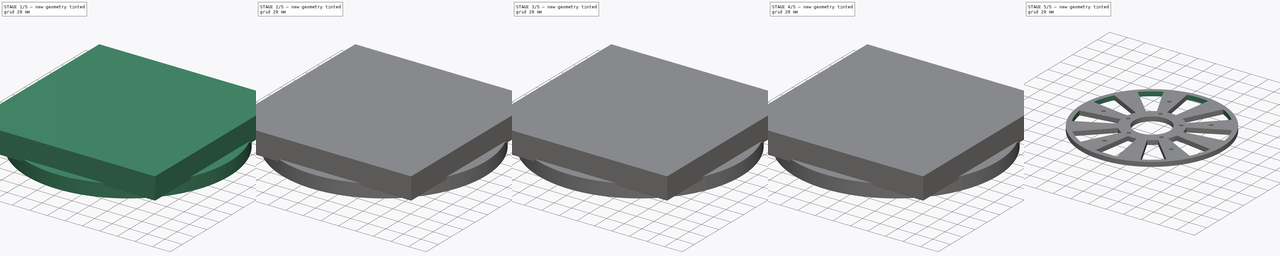
[diagram: build sequence overview — one tinted view per stage of 5, left to right]
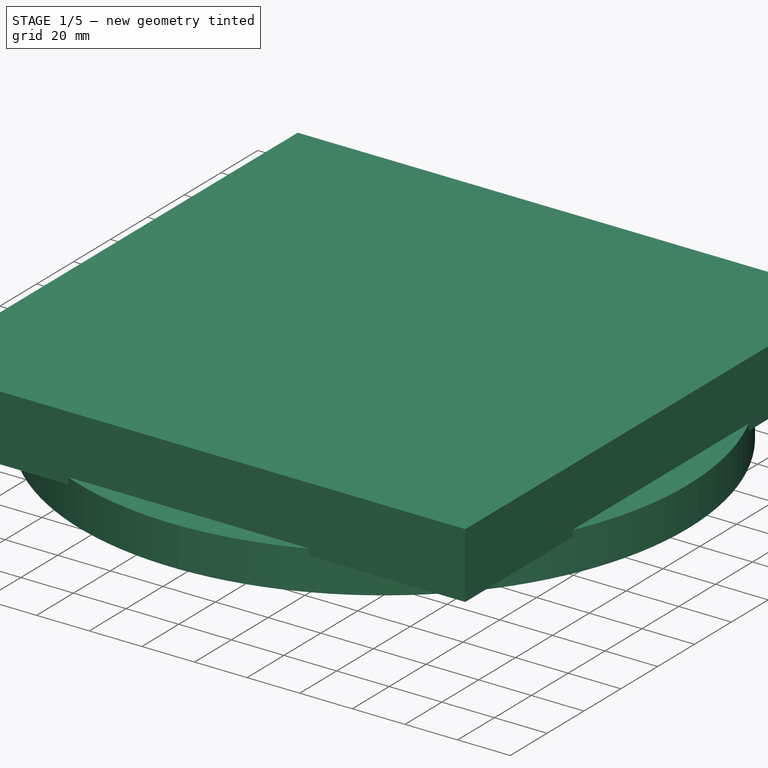
[diagram: stage 1 of 5 — iso view after this stage's code; geometry added in this stage tinted green]
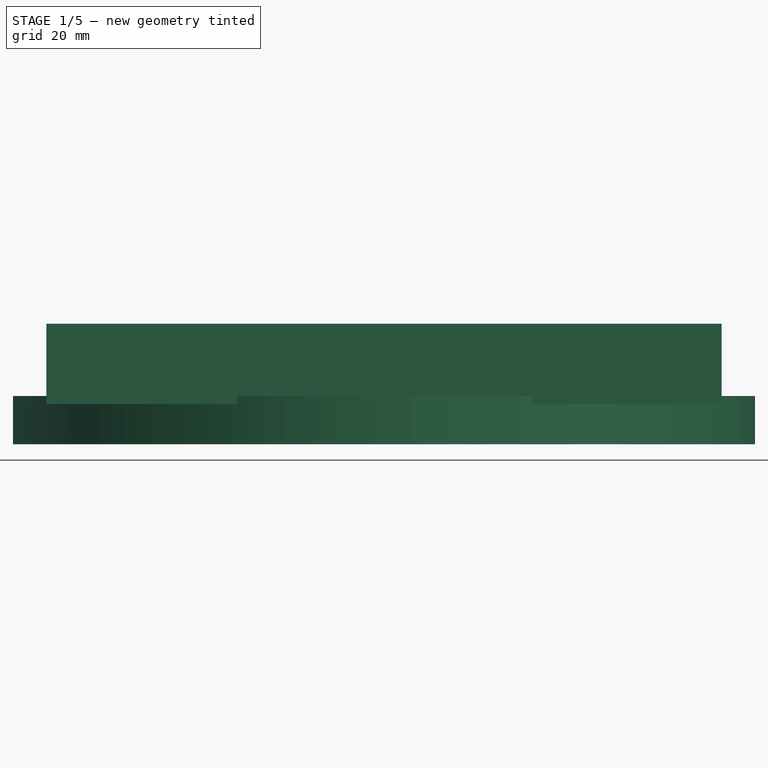
[diagram: stage 1 of 5 — front view after this stage's code; geometry added in this stage tinted green]
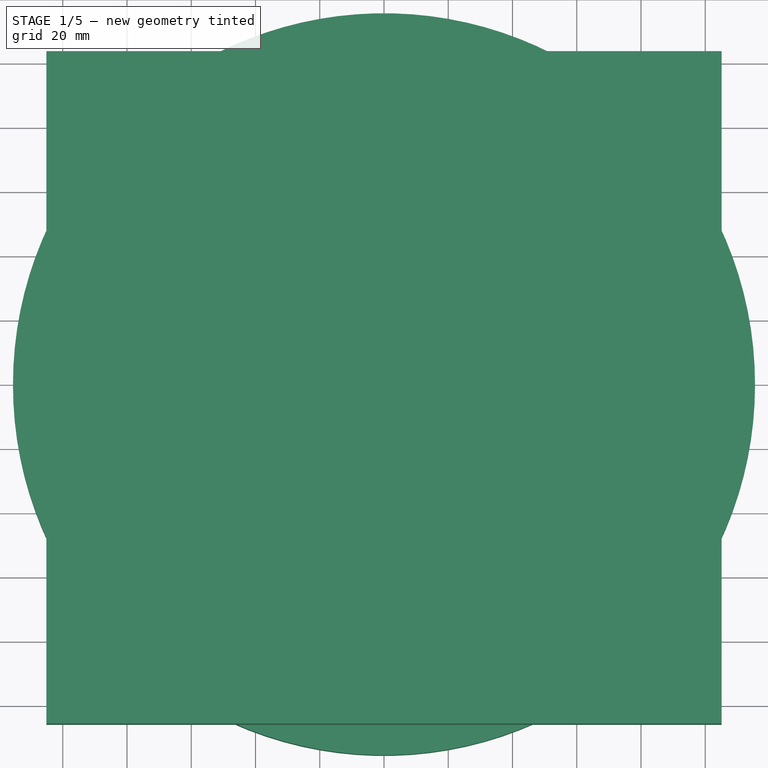
[diagram: stage 1 of 5 — top view after this stage's code; geometry added in this stage tinted green]
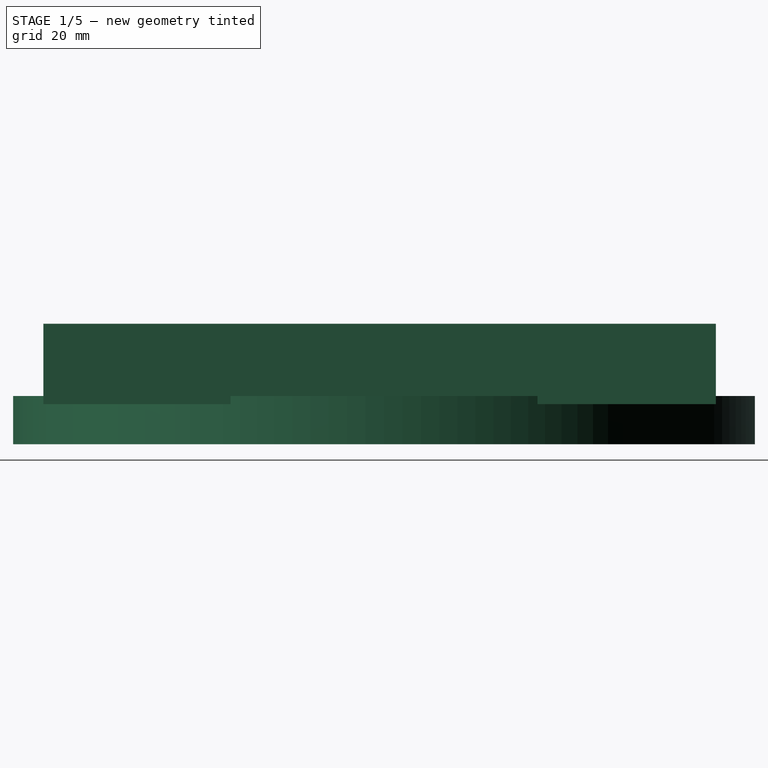
[diagram: stage 1 of 5 — right view after this stage's code; geometry added in this stage tinted green]
FCSTD DOCUMENT  (FreeCAD 0.16R6703 (Git))
Label: Loose Spool Holder Tap
License: FreeArt
LicenseURL: http://artlibre.org/licence/lal
objects: Sketcher::SketchObject×14, PartDesign::Pad×9, PartDesign::Pocket×5, PartDesign::PolarPattern×5, Part::Cut×2, Part::Fuse×1
note: 50 computed .brp shape members not serialized (recipe doc carries the construction recipe); baked Part::Feature solids carry a one-line shape summary decoded from their .brp

FEATURE [Sketcher::SketchObject] Sketch004
  Placement = pos=(0,0,5) rot=(0,0,1;0rad)
  sketch-geometry (2):
    g0: Circle CenterX=0 CenterY=0 CenterZ=0 NormalX=0 NormalY=0 NormalZ=1 Radius=50
    g1: Circle CenterX=0 CenterY=0 CenterZ=0 NormalX=0 NormalY=0 NormalZ=1 Radius=60
  constraints (4):
    c: Coincident(g0,g-1)
    c: Coincident(g1,g-1)
    c: Radius(g0) = 50
    c: Radius(g1) = 60
FEATURE [PartDesign::Pad] Pad002
  Length = 20
  Length2 = 100
  Placement = pos=(0,0,5) rot=(0,0,1;0rad)
  Sketch = -> Sketch004
  Type = 0
FEATURE [Sketcher::SketchObject] Sketch005
  Placement = pos=(0,0,25) rot=(0,0,1;0rad)
  Support = -> Pad002 [Face4]
  sketch-geometry (4):
    g0: LineSegment StartX=-10.8334 StartY=67.0684 StartZ=0 EndX=-7.53839 EndY=47.1201 EndZ=0
    g1: LineSegment StartX=-7.53839 StartY=47.1201 StartZ=0 EndX=7.58167 EndY=47.1201 EndZ=0
    g2: LineSegment StartX=7.58167 StartY=47.1201 StartZ=0 EndX=10.72 EndY=66.0553 EndZ=0
    g3: LineSegment StartX=10.72 StartY=66.0553 StartZ=0 EndX=-10.8334 EndY=67.0684 EndZ=0
  constraints (5):
    c: Coincident(g0,g1)
    c: Horizontal(g1)
    c: Coincident(g1,g2)
    c: Coincident(g2,g3)
    c: Coincident(g3,g0)
FEATURE [PartDesign::Pocket] Pocket001
  Length = 20
  Placement = pos=(0,0,5) rot=(0,0,1;0rad)
  Sketch = -> Sketch005
  Type = 0
FEATURE [Sketcher::SketchObject] Sketch012
  Placement = pos=(0,0,5) rot=(0,0,1;0rad)
  sketch-geometry (4):
    g0: LineSegment StartX=-105.116 StartY=103.312 StartZ=0 EndX=105.116 EndY=103.312 EndZ=0
    g1: LineSegment StartX=105.116 StartY=103.312 StartZ=0 EndX=105.116 EndY=-106.019 EndZ=0
    g2: LineSegment StartX=105.116 StartY=-106.019 StartZ=0 EndX=-105.116 EndY=-106.019 EndZ=0
    g3: LineSegment StartX=-105.116 StartY=-106.019 StartZ=0 EndX=-105.116 EndY=103.312 EndZ=0
  constraints (8):
    c: Coincident(g0,g1)
    c: Coincident(g1,g2)
    c: Coincident(g2,g3)
    c: Coincident(g3,g0)
    c: Horizontal(g0)
    c: Horizontal(g2)
    c: Vertical(g1)
    c: Vertical(g3)
FEATURE [PartDesign::Pad] Pad006
  Length = 25
  Length2 = 100
  Placement = pos=(0,0,5) rot=(0,0,1;0rad)
  Sketch = -> Sketch012
  Type = 0
FEATURE [Sketcher::SketchObject] Sketch013
  sketch-geometry (2):
    g0: Circle CenterX=0 CenterY=0 CenterZ=0 NormalX=0 NormalY=0 NormalZ=1 Radius=80
    g1: Circle CenterX=0 CenterY=0 CenterZ=0 NormalX=0 NormalY=0 NormalZ=1 Radius=115.5
  constraints (3):
    c: Coincident(g0,g-1)
    c: Coincident(g1,g-1)
    c: Radius(g0) = 80
FEATURE [PartDesign::Pad] Pad007
  Length = 15
  Length2 = 100
  Midplane = true
  Sketch = -> Sketch013
  Type = 0
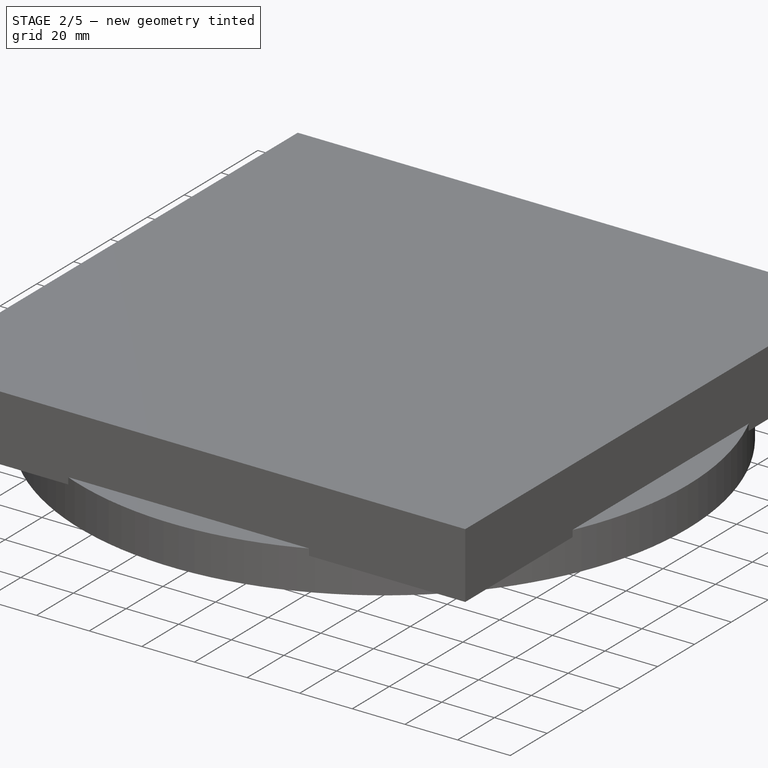
[diagram: stage 2 of 5 — iso view after this stage's code; geometry added in this stage tinted green]
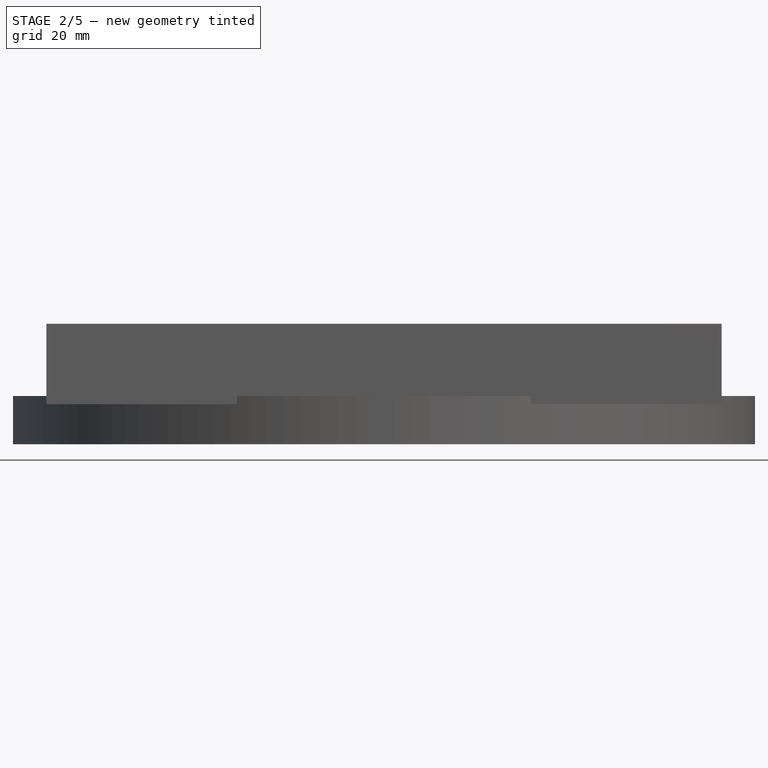
[diagram: stage 2 of 5 — front view after this stage's code; geometry added in this stage tinted green]
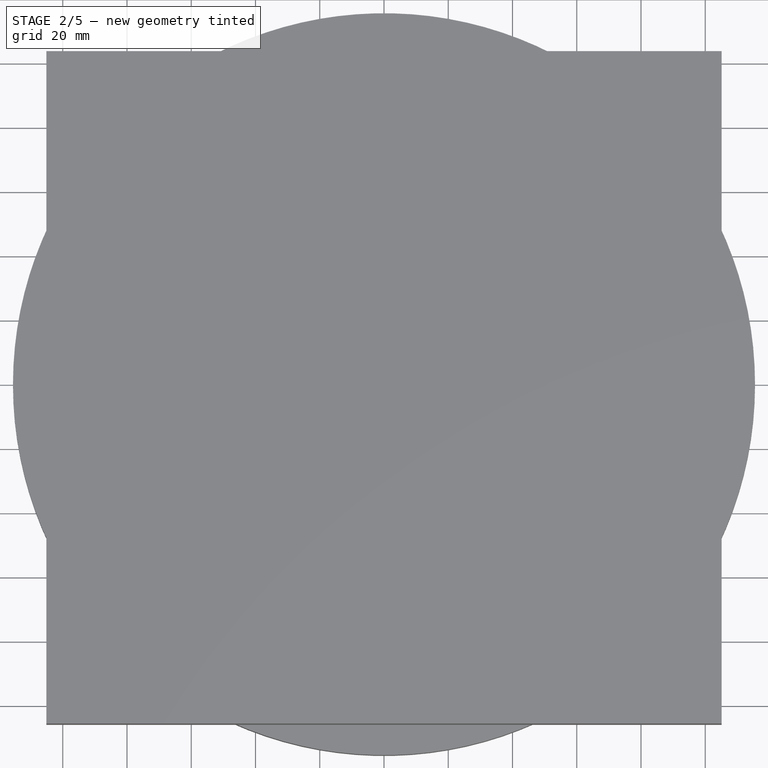
[diagram: stage 2 of 5 — top view after this stage's code; geometry added in this stage tinted green]
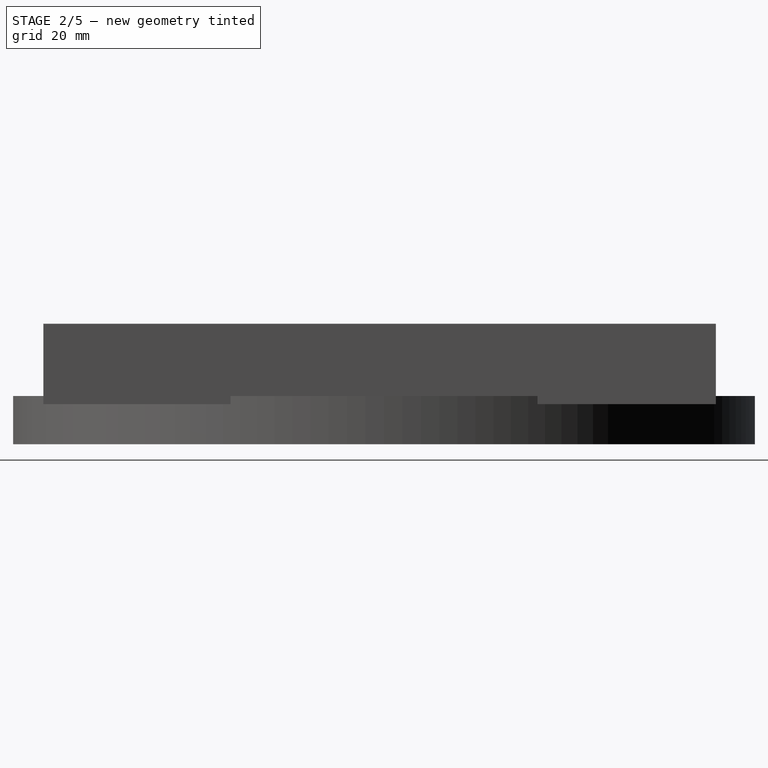
[diagram: stage 2 of 5 — right view after this stage's code; geometry added in this stage tinted green]
FEATURE [Sketcher::SketchObject] Sketch
  sketch-geometry (2):
    g0: Circle CenterX=0 CenterY=0 CenterZ=0 NormalX=0 NormalY=0 NormalZ=1 Radius=20
    g1: Circle CenterX=0 CenterY=0 CenterZ=0 NormalX=0 NormalY=0 NormalZ=1 Radius=100
  constraints (2):
    c: Radius(g0) = 20
    c: Radius(g1) = 100
FEATURE [PartDesign::Pad] Pad
  Length = 5
  Length2 = 100
  Sketch = -> Sketch
  Type = 0
FEATURE [Sketcher::SketchObject] Sketch001
  Placement = pos=(0,0,5) rot=(0,0,1;0rad)
  Support = -> Pad [Face4]
  sketch-geometry (6):
    g0: Circle [constr] CenterX=0 CenterY=0 CenterZ=0 NormalX=0 NormalY=0 NormalZ=1 Radius=40
    g1: Circle [constr] CenterX=0 CenterY=0 CenterZ=0 NormalX=0 NormalY=0 NormalZ=1 Radius=60
    g2: LineSegment StartX=-15 StartY=92.6006 StartZ=0 EndX=15 EndY=92.6006 EndZ=0
    g3: LineSegment StartX=15 StartY=92.6006 StartZ=0 EndX=5 EndY=30.949 EndZ=0
    g4: LineSegment StartX=5 StartY=30.949 StartZ=0 EndX=-5 EndY=30.949 EndZ=0
    g5: LineSegment StartX=-5 StartY=30.949 StartZ=0 EndX=-15 EndY=92.6006 EndZ=0
  constraints (14):
    c: Radius(g0) = 40
    c: Radius(g1) = 60
    c: Coincident(g0,g-1)
    c: Coincident(g1,g-1)
    c: Horizontal(g2)
    c: Coincident(g2,g3)
    c: Coincident(g3,g4)
    c: Horizontal(g4)
    c: Coincident(g4,g5)
    c: Coincident(g5,g2)
    c: Symmetric(g2,g2,g-2)
    c: Symmetric(g3,g4,g-2)
    c: DistanceX(g4,g4) = 10
    c: DistanceX(g2,g2) = 30
FEATURE [PartDesign::Pocket] Pocket
  Length = 5
  Sketch = -> Sketch001
  Type = 1
FEATURE [PartDesign::PolarPattern] PolarPattern
  Angle = 360
  Axis = -> Sketch001 [N_Axis]
  Occurrences = 10
  Originals = -> [Pocket]
FEATURE [Sketcher::SketchObject] Sketch002
  Placement = pos=(0,0,5) rot=(0,0,1;0rad)
  Support = -> PolarPattern [Face3]
  sketch-geometry (2):
    g0: Circle CenterX=0 CenterY=0 CenterZ=0 NormalX=0 NormalY=0 NormalZ=1 Radius=100
    g1: Circle CenterX=0 CenterY=0 CenterZ=0 NormalX=0 NormalY=0 NormalZ=1 Radius=91.9421
  constraints (1):
    c: Radius(g0) = 100
FEATURE [PartDesign::Pad] Pad001
  Length = 2
  Length2 = 5
  Reversed = true
  Sketch = -> Sketch002
  Type = 4
FEATURE [PartDesign::PolarPattern] PolarPattern001
  Angle = 360
  Axis = -> Sketch005 [N_Axis]
  Occurrences = 10
  Originals = -> [Pocket001]
  Placement = pos=(0,0,5) rot=(0,0,1;0rad)
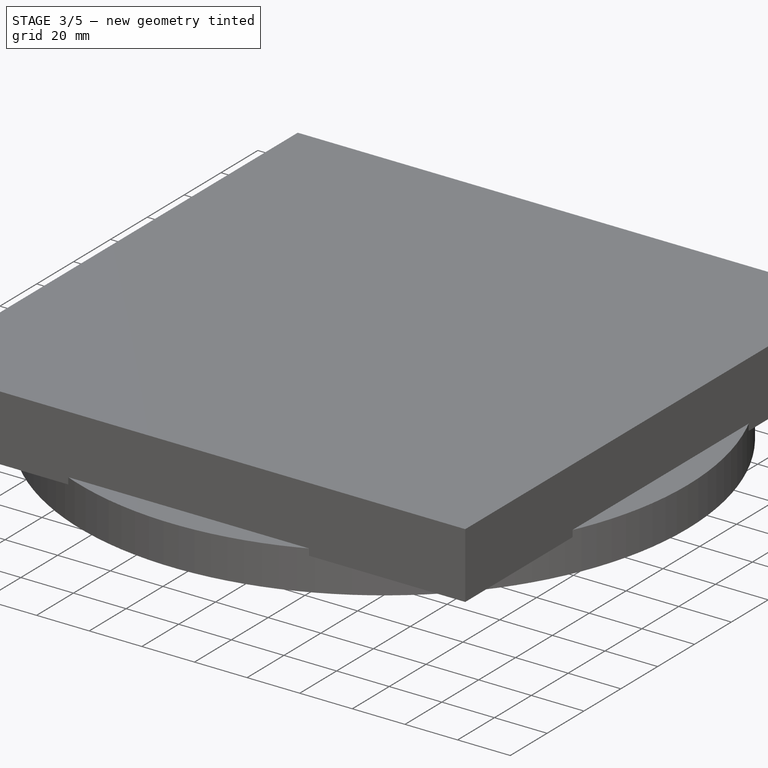
[diagram: stage 3 of 5 — iso view after this stage's code; geometry added in this stage tinted green]
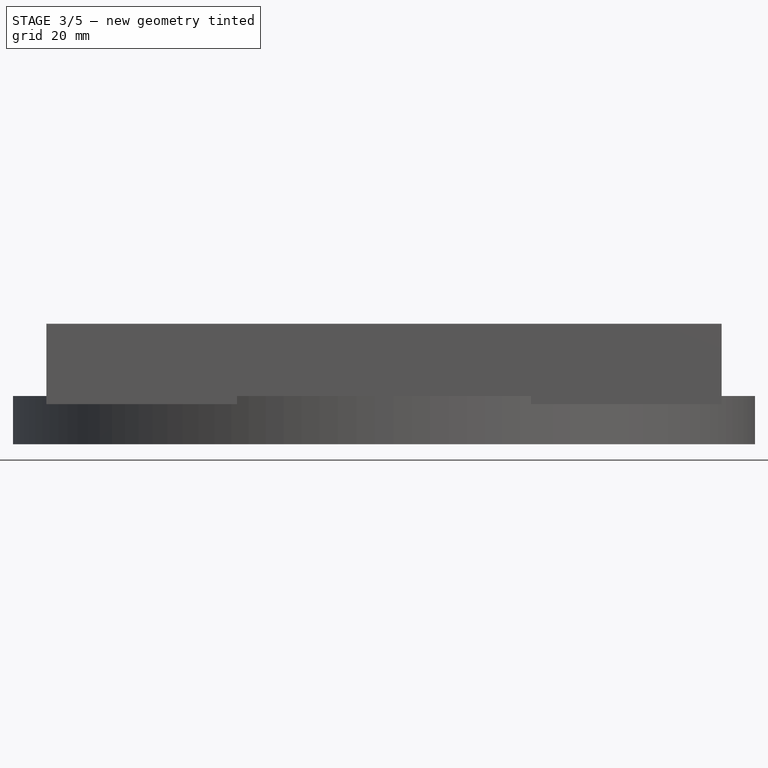
[diagram: stage 3 of 5 — front view after this stage's code; geometry added in this stage tinted green]
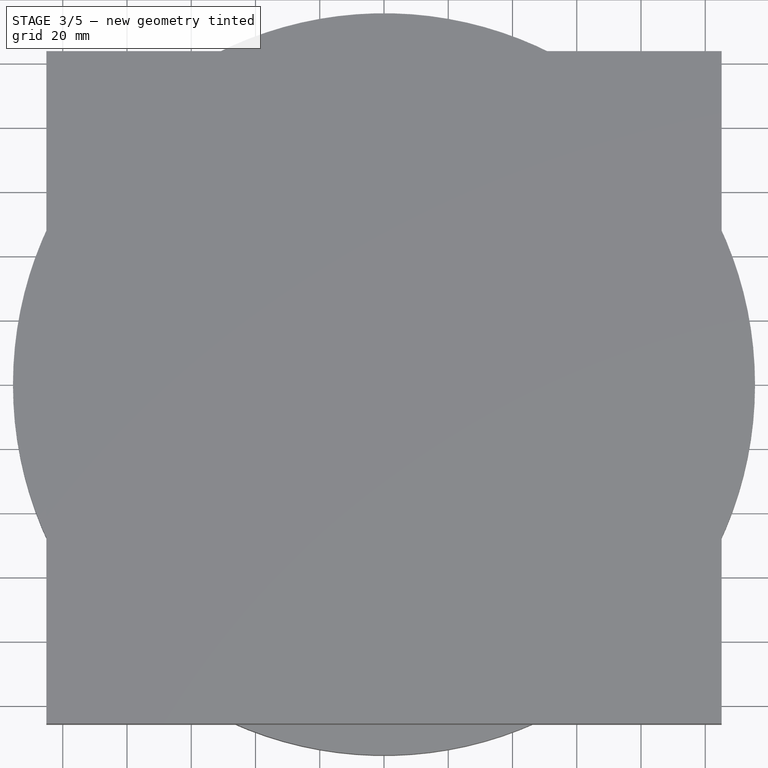
[diagram: stage 3 of 5 — top view after this stage's code; geometry added in this stage tinted green]
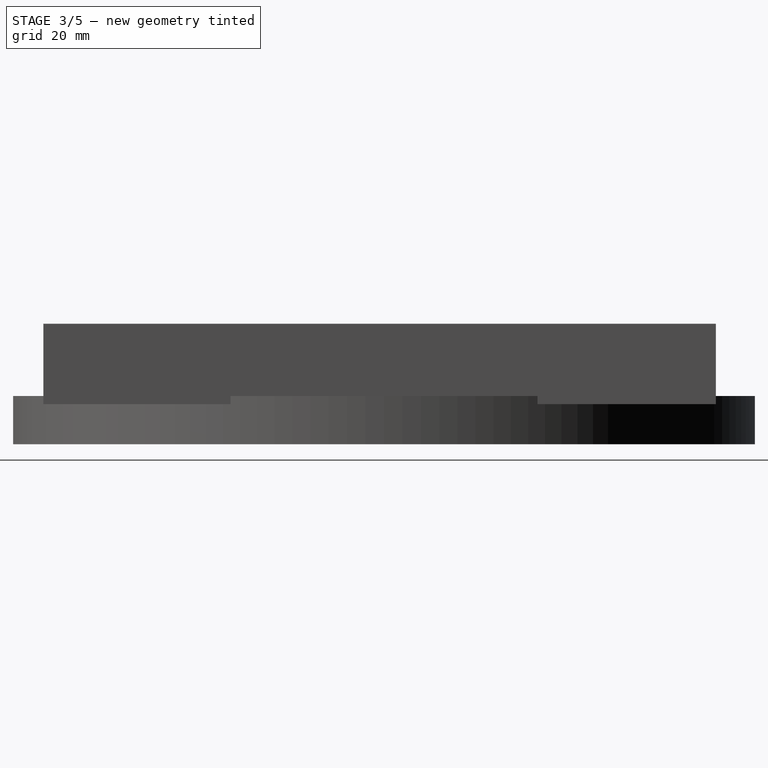
[diagram: stage 3 of 5 — right view after this stage's code; geometry added in this stage tinted green]
FEATURE [Sketcher::SketchObject] Sketch006
  Placement = pos=(0,0,5) rot=(0,0,1;0rad)
  Support = -> Pad001 [Face2]
  sketch-geometry (2):
    g0: Circle CenterX=0 CenterY=0 CenterZ=0 NormalX=0 NormalY=0 NormalZ=1 Radius=20
    g1: Circle CenterX=0 CenterY=0 CenterZ=0 NormalX=0 NormalY=0 NormalZ=1 Radius=32
  constraints (3):
    c: Coincident(g0,g-1)
    c: Radius(g0) = 20
    c: Radius(g1) = 32
FEATURE [PartDesign::Pad] Pad003
  Length = 5
  Length2 = 100
  Reversed = true
  Sketch = -> Sketch006
  Type = 0
FEATURE [Sketcher::SketchObject] Sketch007
  Placement = pos=(0,0,5) rot=(0,0,1;0rad)
  Support = -> Pad003 [Face2]
  sketch-geometry (2):
    g0: Circle CenterX=0 CenterY=0 CenterZ=0 NormalX=0 NormalY=0 NormalZ=1 Radius=20
    g1: Circle CenterX=0 CenterY=0 CenterZ=0 NormalX=0 NormalY=0 NormalZ=1 Radius=25
  constraints (4):
    c: Coincident(g0,g-1)
    c: Coincident(g1,g-1)
    c: Radius(g0) = 20
    c: Radius(g1) = 25
FEATURE [PartDesign::Pad] Pad004
  Length = 20
  Length2 = 100
  Sketch = -> Sketch007
  Type = 0
FEATURE [Sketcher::SketchObject] Sketch008
  Placement = pos=(0,0,5) rot=(0,0,1;0rad)
  Support = -> Pad004 [Face2]
  sketch-geometry (4):
    g0: LineSegment StartX=-31.5406 StartY=4.94484 StartZ=0 EndX=-31.5406 EndY=-4.94484 EndZ=0
    g1: LineSegment StartX=-31.5406 StartY=-4.94484 StartZ=0 EndX=-23.5707 EndY=-4.02765 EndZ=0
    g2: LineSegment StartX=-23.5707 StartY=-4.02765 StartZ=0 EndX=-23.5707 EndY=4.02765 EndZ=0
    g3: LineSegment StartX=-23.5707 StartY=4.02765 StartZ=0 EndX=-31.5406 EndY=4.94484 EndZ=0
  constraints (8):
    c: Vertical(g0)
    c: Coincident(g0,g1)
    c: Coincident(g1,g2)
    c: Vertical(g2)
    c: Coincident(g2,g3)
    c: Coincident(g3,g0)
    c: Symmetric(g0,g0,g-1)
    c: Symmetric(g2,g1,g-1)
FEATURE [PartDesign::Pad] Pad005
  Length = 20
  Length2 = 100
  Sketch = -> Sketch008
  Type = 0
FEATURE [PartDesign::PolarPattern] PolarPattern002
  Angle = 360
  Axis = -> Sketch008 [N_Axis]
  Occurrences = 5
  Originals = -> [Pad005]
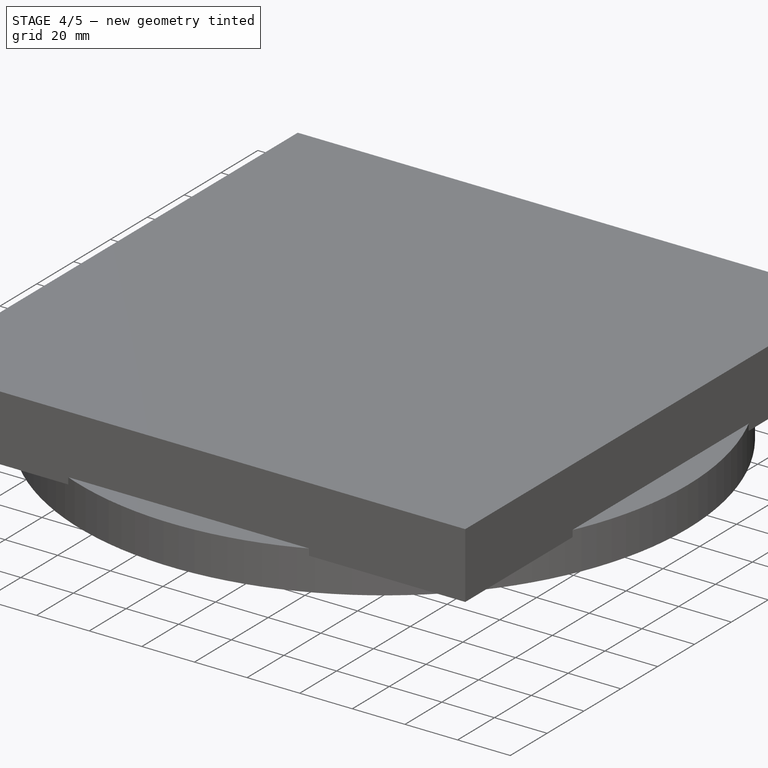
[diagram: stage 4 of 5 — iso view after this stage's code; geometry added in this stage tinted green]
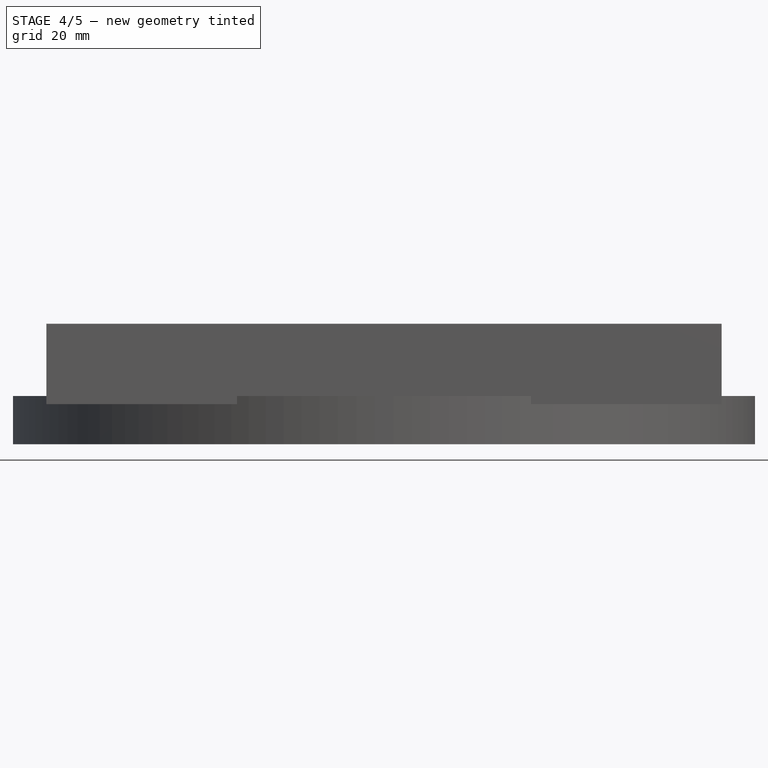
[diagram: stage 4 of 5 — front view after this stage's code; geometry added in this stage tinted green]
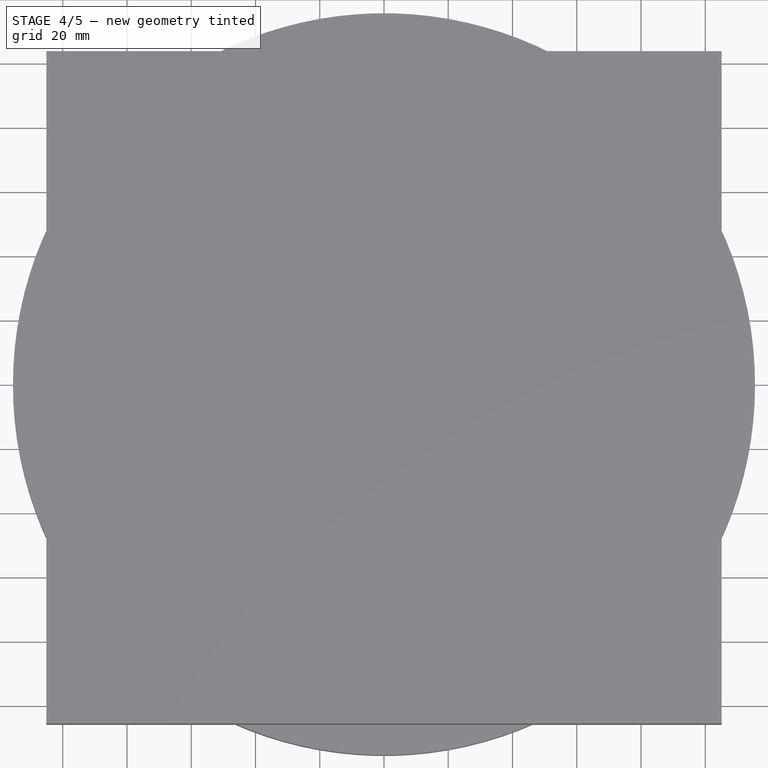
[diagram: stage 4 of 5 — top view after this stage's code; geometry added in this stage tinted green]
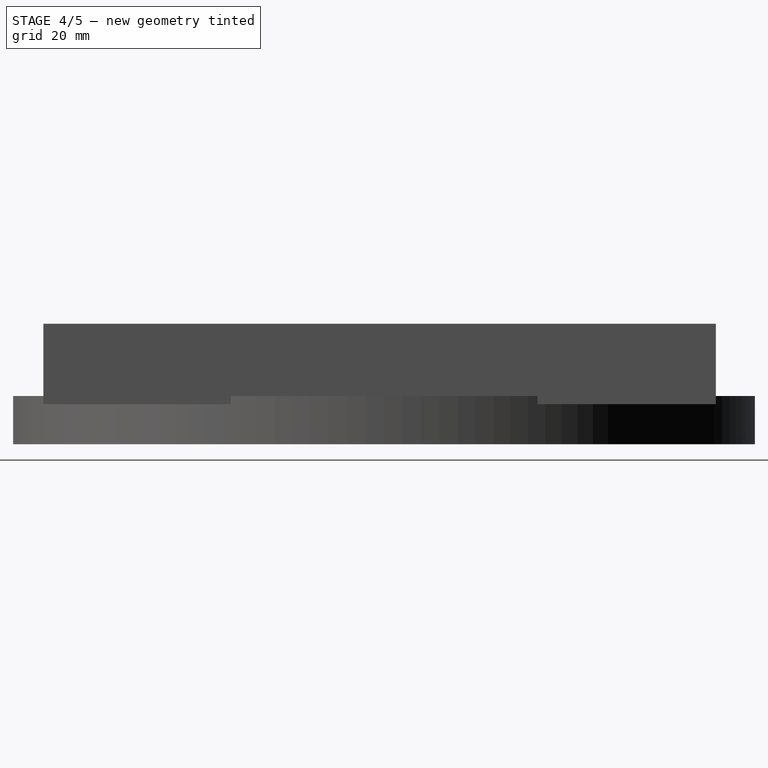
[diagram: stage 4 of 5 — right view after this stage's code; geometry added in this stage tinted green]
FEATURE [Part::Fuse] Fusion
  Base = -> PolarPattern001
  Tool = -> PolarPattern002
FEATURE [Sketcher::SketchObject] Sketch009
  Placement = pos=(0,0,25) rot=(0,0,1;0rad)
  Support = -> Fusion [Face129]
  sketch-geometry (2):
    g0: Circle CenterX=-55 CenterY=0 CenterZ=0 NormalX=0 NormalY=0 NormalZ=1 Radius=2
    g1: Circle CenterX=-27 CenterY=0 CenterZ=0 NormalX=0 NormalY=0 NormalZ=1 Radius=2
  constraints (6):
    c: PointOnObject(g0,g-1)
    c: DistanceX(g0,g-1) = 55
    c: Radius(g0) = 2
    c: PointOnObject(g1,g-1)
    c: Radius(g1) = 2
    c: DistanceX(g1,g-1) = 27
FEATURE [PartDesign::Pocket] Pocket002
  Length = 5
  Sketch = -> Sketch009
  Type = 1
FEATURE [PartDesign::PolarPattern] PolarPattern003
  Angle = 360
  Axis = -> Sketch009 [N_Axis]
  Occurrences = 5
  Originals = -> [Pocket002]
FEATURE [Sketcher::SketchObject] Sketch010
  Placement = pos=(0,0,0) rot=(1,0,0;3.14159rad)
  Support = -> PolarPattern003 [Face4]
  sketch-geometry (2):
    g0: Circle CenterX=-55 CenterY=0 CenterZ=0 NormalX=0 NormalY=0 NormalZ=1 Radius=4
    g1: Circle CenterX=-27 CenterY=0 CenterZ=0 NormalX=0 NormalY=0 NormalZ=1 Radius=4
  constraints (6):
    c: PointOnObject(g0,g-1)
    c: DistanceX(g-2,g0) = -55
    c: Radius(g0) = 4
    c: PointOnObject(g1,g-1)
    c: Distance(g-1,g1) = 27
    c: Radius(g1) = 4
FEATURE [PartDesign::Pocket] Pocket003
  Length = 2
  Sketch = -> Sketch010
  Type = 0
FEATURE [PartDesign::PolarPattern] PolarPattern004
  Angle = 360
  Axis = -> Sketch010 [N_Axis]
  Occurrences = 5
  Originals = -> [Pocket003]
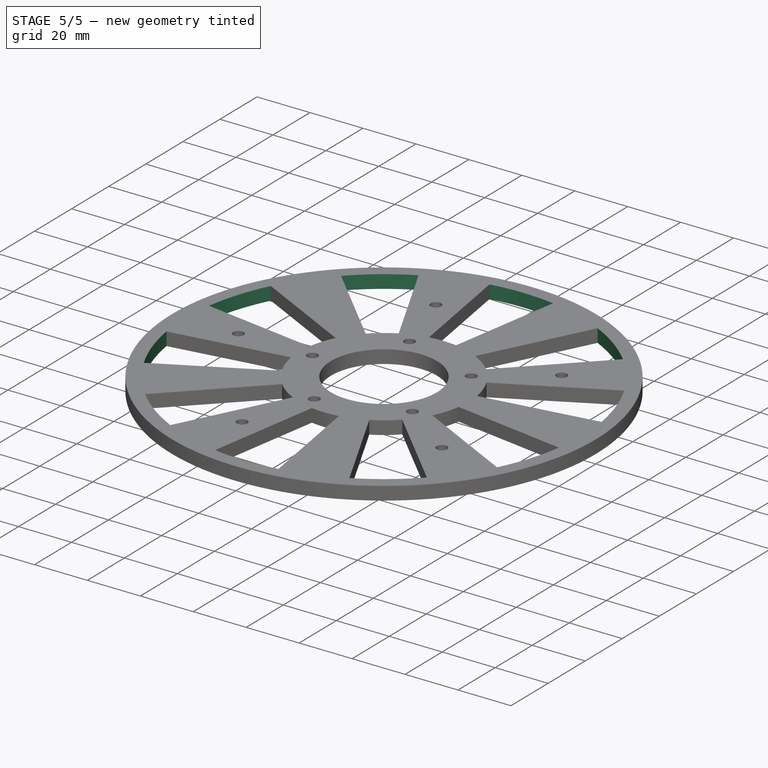
[diagram: stage 5 of 5 — iso view after this stage's code; geometry added in this stage tinted green]
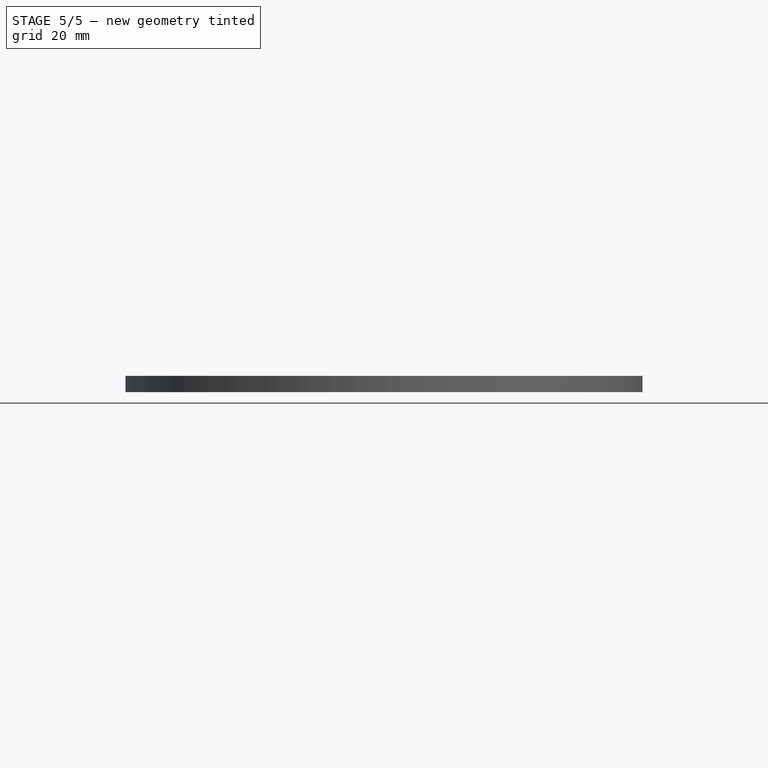
[diagram: stage 5 of 5 — front view after this stage's code; geometry added in this stage tinted green]
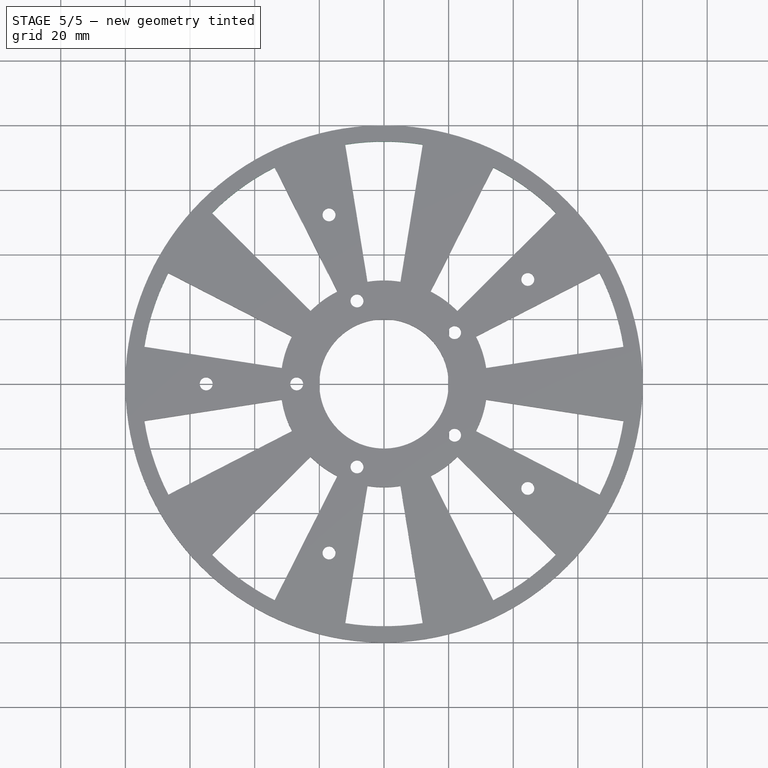
[diagram: stage 5 of 5 — top view after this stage's code; geometry added in this stage tinted green]
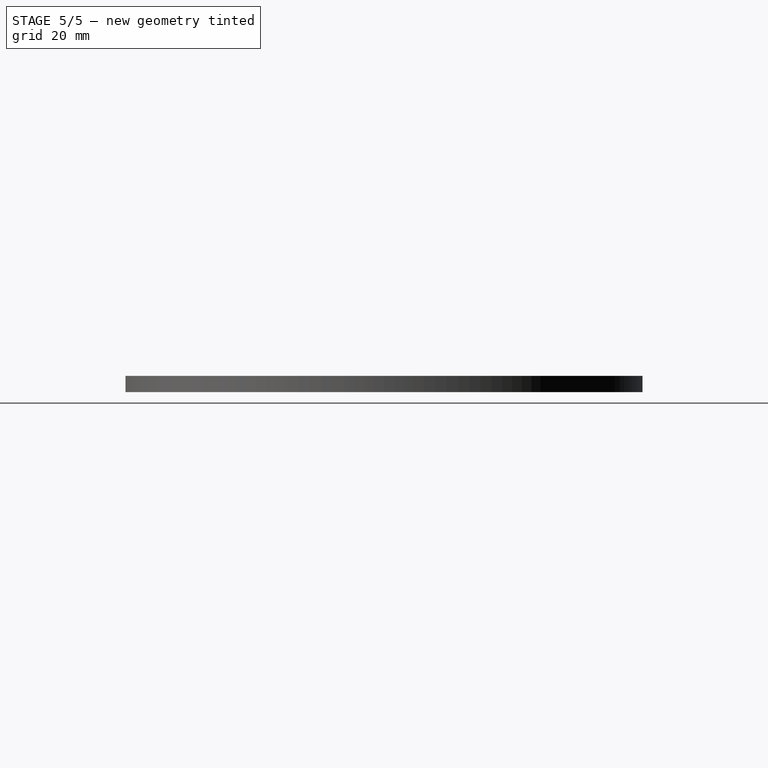
[diagram: stage 5 of 5 — right view after this stage's code; geometry added in this stage tinted green]
FEATURE [Sketcher::SketchObject] Sketch011
  Placement = pos=(1.28052,0.259015,0) rot=(0.50068,0.612095,0.612095;2.21321rad)
  Support = -> PolarPattern004 [Face131]
  sketch-geometry (1):
    g0: Circle CenterX=-56.0075 CenterY=9.826 CenterZ=0 NormalX=0 NormalY=0 NormalZ=1 Radius=0.8
  constraints (1):
    c: Radius(g0) = 0.8
FEATURE [PartDesign::Pocket] Pocket004
  Length = 23
  Sketch = -> Sketch011
  Type = 0
FEATURE [Part::Cut] Cut
  Base = -> Pocket004
  Tool = -> Pad006
FEATURE [Part::Cut] Cut001
  Base = -> Cut
  Tool = -> Pad007
FEATURE [Sketcher::SketchObject] Sketch014
  Placement = pos=(0,0,5) rot=(0,0,1;0rad)
  Support = -> Cut001 [Face1]
  sketch-geometry (2):
    g0: Circle CenterX=0 CenterY=0 CenterZ=0 NormalX=0 NormalY=0 NormalZ=1 Radius=80
    g1: Circle CenterX=0 CenterY=0 CenterZ=0 NormalX=0 NormalY=0 NormalZ=1 Radius=75
  constraints (4):
    c: Coincident(g0,g-1)
    c: Coincident(g1,g-1)
    c: Radius(g1) = 75
    c: Radius(g0) = 80
FEATURE [PartDesign::Pad] Pad008
  Length = 5
  Length2 = 100
  Reversed = true
  Sketch = -> Sketch014
  Type = 0
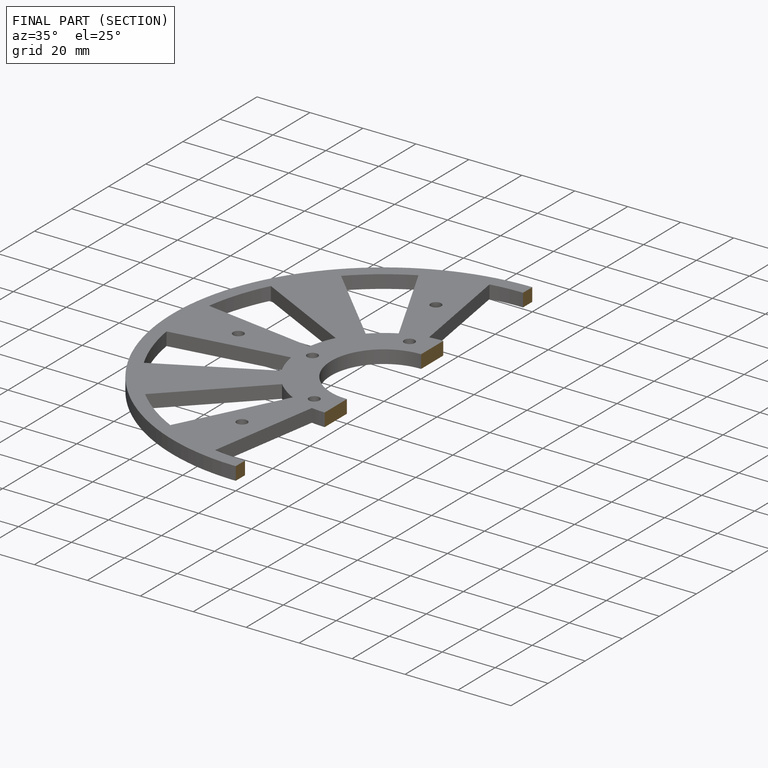
[diagram: finished part — half-section view (interior)]
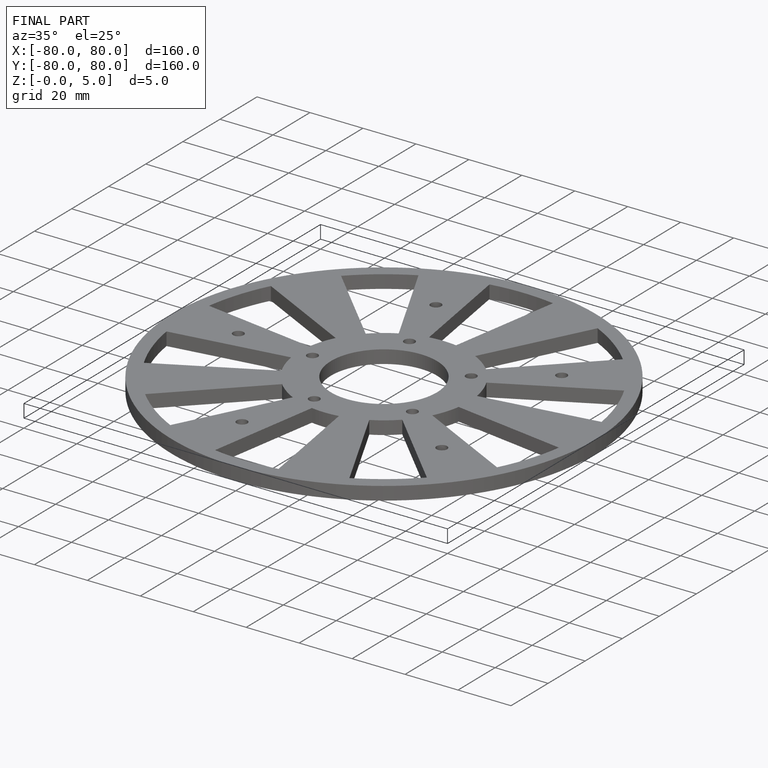
[diagram: finished part — iso view with bounding-box wireframe]
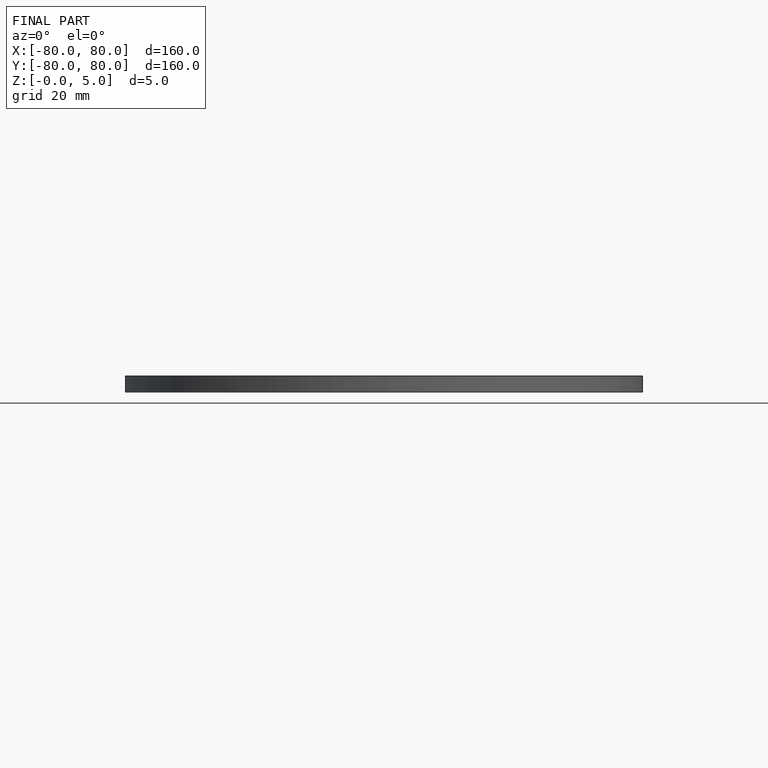
[diagram: finished part — front view with bounding-box wireframe]
